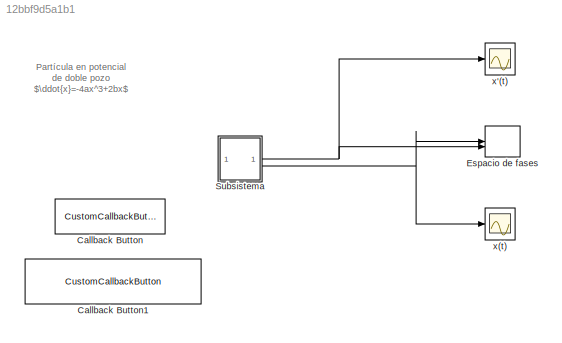
MODEL slx_12bbf9d5a1b1
KIND model
CONFIG AbsTol = auto
CONFIG EnableMultiTasking = off
CONFIG FixedStep = 0.01
CONFIG MaxStep = auto
CONFIG MinStep = auto
CONFIG RelTol = 1e-3
CONFIG SampleTimeConstraint = Unconstrained
CONFIG SolverName = ode4
CONFIG StartTime = 0.0
CONFIG StopTime = 100.0
BLOCK [CustomCallbackButton] Callback Button
  Configuration = {"components":[{"name":"BackgroundImageComponent","settings":{"image":{"size":[0,0],"src":"default","srcOrientation":"Right"},"position":[0,0,1,1]}},{"name":"ButtonStateComponent","settings":{"buttonType":"momentary","clickFcn":"V1=@(x)2*x.^4-0.5*x.^2;\nV2=@(x)1*x.^4-0.5*x.^2;\nV3=@(x)0.25*x.^4-0.5*x.^2;\nV4=@(x)0.125*x.^4-0.5*x.^2;\nx=linspace(-3,3,1000);\ny1=V1(x);\ny2=V2(x);\ny3=V3(x);\ny4=V4(x...<+2680ch>
  CustomBackgroundColor = {"color":[0.9568627451,0.9568627451,0.9568627451],"show":true}
BLOCK [CustomCallbackButton] Callback Button1
  Configuration = {"components":[{"name":"BackgroundImageComponent","settings":{"image":{"size":[0,0],"src":"default","srcOrientation":"Right"},"position":[0,0,1,1]}},{"name":"ButtonStateComponent","settings":{"buttonType":"momentary","clickFcn":"x = out.Posicion;\nv = out.Velocidad;\nplot(x(:,2),v(:,2),'LineWidth',2,'Color','b')\nhold on\ngrid on\nxlabel('$x$','Interpreter','latex','FontSize',18)\nylabel('$\\dot{x...<+2738ch>
  CustomBackgroundColor = {"color":[0.9568627451,0.9568627451,0.9568627451],"show":true}
BLOCK [Record] Espacio de fases
  CompatibilityTag = XY
  FileSettingsInternal = {"entries":[{"content":{"excelSettings":{"content":{},"type":"Streamout.ExcelSettings"}},"type":"Streamout.FileSettingStorage","uuid":""}],"packageUris":["http:\/\/schema.mathworks.com\/mf0\/streamout_blocks\/R2020a"],"version":"1.0"}
  Layout = [1 1]
  SignalsInternal = {"entries":[{"content":{"signals":[{"content":{"blockPath":[],"dimensions":[5],"domain":"","hasChildren":true,"lineColor":"#edb120","lineWidth":2,"port":1,"sid":[""],"signalID":1,"signalName":"Subsistema:2"},"type":"RecordBlkView.Signal","uuid":""},{"content":{"blockPath":[],"channel":[1],"dimensions":[5],"domain":"","lineColor":"#4dbeee","lineWidth":2,"parentID":1,"plots":[ 1 ],"port":1,"sid":[""...<+2445ch>
  VisualizationBindings = {"xyplotplugin":{"info":[{"series":[{"bindingParametersList":[{"parameter":"X-Axis","signalID":2,"signalName":"Subsistema:2(1)"},{"parameter":"Y-Axis","signalID":2,"signalName":"Subsistema:2(1)"}],"seriesID":0}],"subplotID":1}]}}
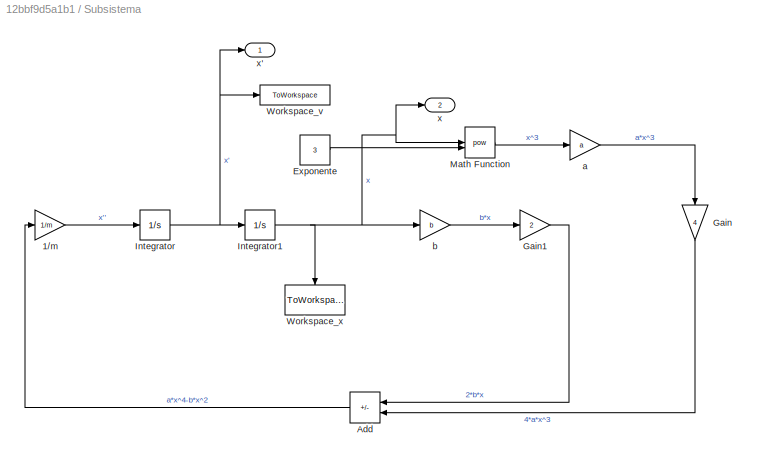
BLOCK [SubSystem] Subsistema
BLOCK [Gain] Subsistema/1//m
  Gain = 1/m
BLOCK [Sum] Subsistema/Add
  IconShape = rectangular
  Inputs = +-
  NameLocation = top
BLOCK [Constant] Subsistema/Exponente
  Value = 3
BLOCK [Gain] Subsistema/Gain
  Gain = 4
  NameLocation = left
BLOCK [Gain] Subsistema/Gain1
  Gain = 2
BLOCK [Integrator] Subsistema/Integrator
BLOCK [Integrator] Subsistema/Integrator1
  InitialCondition = linspace(-3,0,5)
BLOCK [Math] Subsistema/Math Function
  Operator = pow
BLOCK [ToWorkspace] Subsistema/Workspace_v
  FixptAsFi = on
  MaxDataPoints = inf
  SampleTime = -1
  SaveFormat = Timeseries
  VariableName = v
BLOCK [ToWorkspace] Subsistema/Workspace_x
  FixptAsFi = on
  MaxDataPoints = inf
  NameLocation = left
  SampleTime = -1
  SaveFormat = Timeseries
  VariableName = x
BLOCK [Gain] Subsistema/a
  Gain = a
BLOCK [Gain] Subsistema/b
  Gain = b
BLOCK [Outport] Subsistema/x
  Port = 2
BLOCK [Outport] Subsistema/x'
BLOCK [Scope] x'(t)
  Floating = off
  NumInputPorts = 1
  ScopeSpecificationString = Simulink.scopes.TimeScopeBlockCfg('CurrentConfiguration', extmgr.ConfigurationSet(extmgr.Configuration('Core','General UI',true),extmgr.Configuration('Core','Source UI',true),extmgr.Configuration('Sources','WiredSimulink',true,'DataLoggingVariableName','Velocidad','DataLogging',true,'DataLoggingSaveFormat','Array'),extmgr.Configuration('Visuals','Time Domain',true,'SerializedDisplays',{struct('Min...<+1600ch>
BLOCK [Scope] x(t)
  Floating = off
  NumInputPorts = 1
  ScopeSpecificationString = Simulink.scopes.TimeScopeBlockCfg('CurrentConfiguration', extmgr.ConfigurationSet(extmgr.Configuration('Core','General UI',true,'FigureColor',[0 0 0]),extmgr.Configuration('Core','Source UI',true),extmgr.Configuration('Sources','WiredSimulink',true,'DataLogging',true,'DataLoggingVariableName','Posicion','DataLoggingSaveFormat','Array'),extmgr.Configuration('Visuals','Time Domain',true,'SerializedD...<+2160ch>
ANNOTATION (root): Partícula en potencial de doble pozo $\ddot{x}=-4ax^3+2bx$
LINE Subsistema/1//m:1 -> Subsistema/Integrator:1
LINE Subsistema/Add:1 -> Subsistema/1//m:1
LINE Subsistema/Exponente:1 -> Subsistema/Math Function:2
LINE Subsistema/Gain1:1 -> Subsistema/Add:1
LINE Subsistema/Gain:1 -> Subsistema/Add:2
NET Subsistema/Integrator1:1 -> Subsistema/Math Function:1, Subsistema/Workspace_x:1, Subsistema/b:1, Subsistema/x:1
NET Subsistema/Integrator:1 -> Subsistema/Integrator1:1, Subsistema/Workspace_v:1, Subsistema/x':1
LINE Subsistema/Math Function:1 -> Subsistema/a:1
LINE Subsistema/a:1 -> Subsistema/Gain:1
LINE Subsistema/b:1 -> Subsistema/Gain1:1
NET Subsistema:1 -> Espacio de fases:2, x'(t):1
NET Subsistema:2 -> Espacio de fases:1, x(t):1
note: NET lines group one-source signal fan-out (src -> all destinations, sorted); 1:1 wires keep LINE
